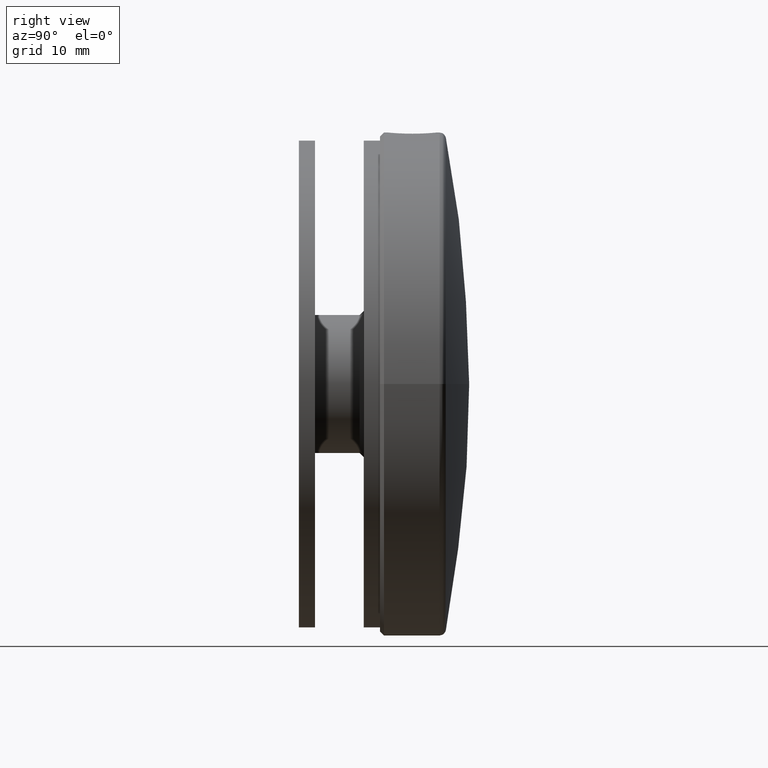
[diagram: clean part render]
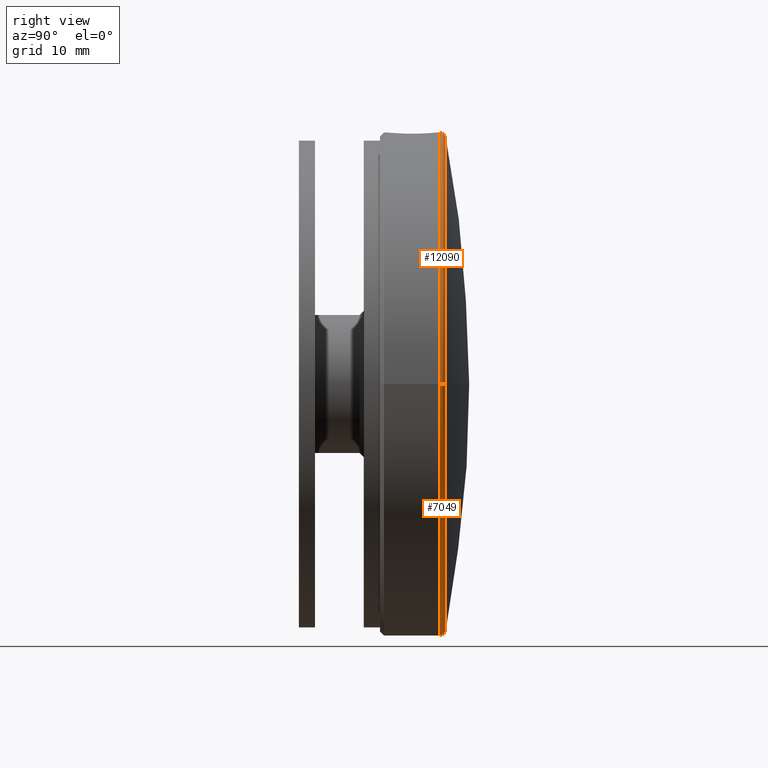
[diagram: same view with one multi-face feature highlighted, each face labeled with its STEP entity id]
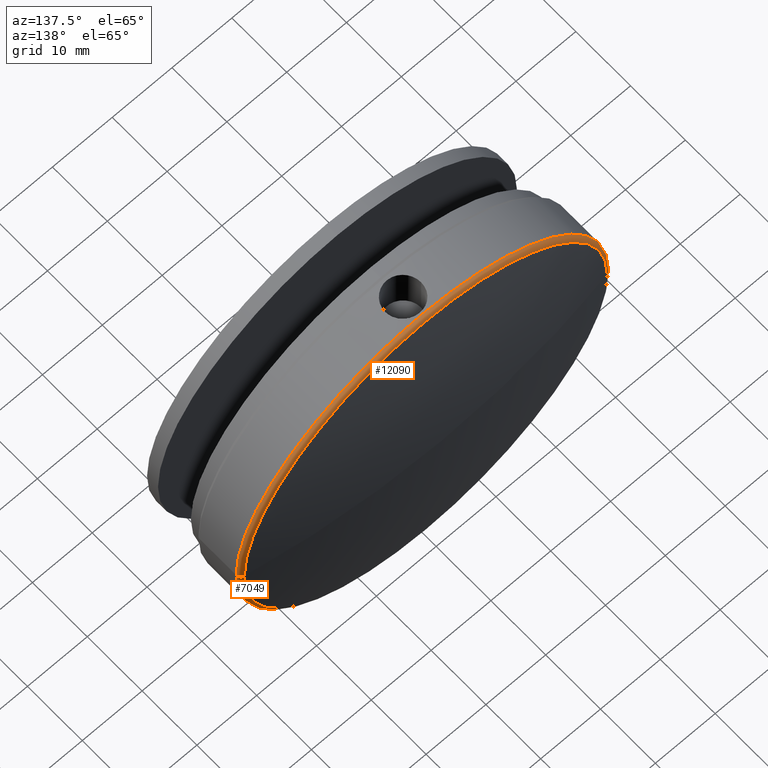
[diagram: same view with one multi-face feature highlighted, each face labeled with its STEP entity id]
A machine part, right view. The highlighted faces form ONE feature: a constant-radius fillet chain: 2 tangent blend faces with common blend radius 0.8 mm. The faces share edges in the B-rep.
A second angle (auxiliary view) of the same feature is appended — it is thin or edge-on in the first view.
Their STEP definitions:
[1] entity #12090 (Torus):
#370 = EDGE_CURVE ( 'NONE', #14091, #10499, #7485, .T. ) ;
#626 = DIRECTION ( 'NONE',  ( 1.000000000000000000, 9.512999706969587101E-16, 0.000000000000000000 ) ) ;
#1082 = ORIENTED_EDGE ( 'NONE', *, *, #370, .T. ) ;
#1765 = AXIS2_PLACEMENT_3D ( 'NONE', #3835, #5037, #12440 ) ;
#3175 = CARTESIAN_POINT ( 'NONE',  ( -30.20000000000000639, 7.339802961777496471, 3.698433333425007470E-15 ) ) ;
#3373 = CARTESIAN_POINT ( 'NONE',  ( 30.99999999999999289, 7.339802961777554202, 0.000000000000000000 ) ) ;
#3835 = CARTESIAN_POINT ( 'NONE',  ( -1.502512562186208390E-13, 8.125579022921936456, 0.000000000000000000 ) ) ;
#4476 = EDGE_CURVE ( 'NONE', #5983, #10499, #9338, .T. ) ;
#5037 = DIRECTION ( 'NONE',  ( -9.462128050782584868E-16, 1.000000000000000000, 0.000000000000000000 ) ) ;
#5108 = EDGE_LOOP ( 'NONE', ( #8063, #1082, #9431, #8438 ) ) ;
#5983 = VERTEX_POINT ( 'NONE', #3373 ) ;
#6591 = CARTESIAN_POINT ( 'NONE',  ( -6.945015549185220484E-15, 7.339802961777524892, 0.000000000000000000 ) ) ;
#6849 = DIRECTION ( 'NONE',  ( 1.224646799147353454E-16, 1.158776483051327982E-31, 1.000000000000000000 ) ) ;
#6854 = CARTESIAN_POINT ( 'NONE',  ( -30.35018648984662804, 8.125579022921908035, 3.716825873831572403E-15 ) ) ;
#7061 = CIRCLE ( 'NONE', #1765, 30.35018648984666711 ) ;
#7185 = CARTESIAN_POINT ( 'NONE',  ( -31.00000000000001066, 7.339802961777495582, 3.796405077356795904E-15 ) ) ;
#7456 = VERTEX_POINT ( 'NONE', #13464 ) ;
#7485 = CIRCLE ( 'NONE', #9816, 0.7999999999999986011 ) ;
#7720 = DIRECTION ( 'NONE',  ( 0.000000000000000000, 0.000000000000000000, -1.000000000000000000 ) ) ;
#8063 = ORIENTED_EDGE ( 'NONE', *, *, #12454, .F. ) ;
#8438 = ORIENTED_EDGE ( 'NONE', *, *, #15050, .F. ) ;
#8527 = AXIS2_PLACEMENT_3D ( 'NONE', #14775, #7720, #13565 ) ;
#9101 = AXIS2_PLACEMENT_3D ( 'NONE', #12881, #12830, #626 ) ;
#9160 = FACE_OUTER_BOUND ( 'NONE', #5108, .T. ) ;
#9338 = CIRCLE ( 'NONE', #9101, 31.00000000000000000 ) ;
#9431 = ORIENTED_EDGE ( 'NONE', *, *, #4476, .F. ) ;
#9542 = TOROIDAL_SURFACE ( 'NONE', #12763, 30.20000000000000284, 0.8000000000000000444 ) ;
#9816 = AXIS2_PLACEMENT_3D ( 'NONE', #3175, #6849, #11598 ) ;
#10499 = VERTEX_POINT ( 'NONE', #7185 ) ;
#11231 = DIRECTION ( 'NONE',  ( 1.000000000000000000, 9.462128050782584868E-16, 0.000000000000000000 ) ) ;
#11598 = DIRECTION ( 'NONE',  ( 1.000000000000000000, 0.000000000000000000, -1.224646799147358384E-16 ) ) ;
#12090 = ADVANCED_FACE ( 'NONE', ( #9160 ), #9542, .T. ) ;
#12440 = DIRECTION ( 'NONE',  ( 1.000000000000000000, 9.716678051211115179E-16, 0.000000000000000000 ) ) ;
#12454 = EDGE_CURVE ( 'NONE', #14091, #7456, #7061, .T. ) ;
#12763 = AXIS2_PLACEMENT_3D ( 'NONE', #6591, #13697, #11231 ) ;
#12830 = DIRECTION ( 'NONE',  ( 9.462128050782584868E-16, -1.000000000000000000, -0.000000000000000000 ) ) ;
#12881 = CARTESIAN_POINT ( 'NONE',  ( -6.945015549185222062E-15, 7.339802961777524892, 0.000000000000000000 ) ) ;
#13464 = CARTESIAN_POINT ( 'NONE',  ( 30.35018648984632961, 8.125579022921963102, 0.000000000000000000 ) ) ;
#13565 = DIRECTION ( 'NONE',  ( -1.000000000000000000, 0.000000000000000000, 0.000000000000000000 ) ) ;
#13697 = DIRECTION ( 'NONE',  ( 9.462128050782584868E-16, -1.000000000000000000, -0.000000000000000000 ) ) ;
#14091 = VERTEX_POINT ( 'NONE', #6854 ) ;
#14197 = CIRCLE ( 'NONE', #8527, 0.7999999999999986011 ) ;
#14775 = CARTESIAN_POINT ( 'NONE',  ( 30.19999999999999574, 7.339802961777553314, 0.000000000000000000 ) ) ;
#15050 = EDGE_CURVE ( 'NONE', #7456, #5983, #14197, .T. ) ;
[2] entity #7049 (Torus):
#238 = TOROIDAL_SURFACE ( 'NONE', #14846, 30.20000000000000284, 0.8000000000000000444 ) ;
#370 = EDGE_CURVE ( 'NONE', #14091, #10499, #7485, .T. ) ;
#1256 = EDGE_LOOP ( 'NONE', ( #11893, #5217, #6215, #2582 ) ) ;
#1681 = EDGE_CURVE ( 'NONE', #10499, #5983, #12205, .T. ) ;
#2582 = ORIENTED_EDGE ( 'NONE', *, *, #1681, .F. ) ;
#3175 = CARTESIAN_POINT ( 'NONE',  ( -30.20000000000000639, 7.339802961777496471, 3.698433333425007470E-15 ) ) ;
#3373 = CARTESIAN_POINT ( 'NONE',  ( 30.99999999999999289, 7.339802961777554202, 0.000000000000000000 ) ) ;
#4216 = CARTESIAN_POINT ( 'NONE',  ( -6.945015549185220484E-15, 7.339802961777524892, 0.000000000000000000 ) ) ;
#5071 = AXIS2_PLACEMENT_3D ( 'NONE', #14251, #8019, #9266 ) ;
#5217 = ORIENTED_EDGE ( 'NONE', *, *, #12959, .F. ) ;
#5983 = VERTEX_POINT ( 'NONE', #3373 ) ;
#6215 = ORIENTED_EDGE ( 'NONE', *, *, #15050, .T. ) ;
#6849 = DIRECTION ( 'NONE',  ( 1.224646799147353454E-16, 1.158776483051327982E-31, 1.000000000000000000 ) ) ;
#6854 = CARTESIAN_POINT ( 'NONE',  ( -30.35018648984662804, 8.125579022921908035, 3.716825873831572403E-15 ) ) ;
#7049 = ADVANCED_FACE ( 'NONE', ( #9096 ), #238, .T. ) ;
#7185 = CARTESIAN_POINT ( 'NONE',  ( -31.00000000000001066, 7.339802961777495582, 3.796405077356795904E-15 ) ) ;
#7456 = VERTEX_POINT ( 'NONE', #13464 ) ;
#7485 = CIRCLE ( 'NONE', #9816, 0.7999999999999986011 ) ;
#7720 = DIRECTION ( 'NONE',  ( 0.000000000000000000, 0.000000000000000000, -1.000000000000000000 ) ) ;
#8019 = DIRECTION ( 'NONE',  ( -9.462128050782584868E-16, 1.000000000000000000, 0.000000000000000000 ) ) ;
#8527 = AXIS2_PLACEMENT_3D ( 'NONE', #14775, #7720, #13565 ) ;
#9096 = FACE_OUTER_BOUND ( 'NONE', #1256, .T. ) ;
#9266 = DIRECTION ( 'NONE',  ( 1.000000000000000000, 9.716678051211115179E-16, 0.000000000000000000 ) ) ;
#9816 = AXIS2_PLACEMENT_3D ( 'NONE', #3175, #6849, #11598 ) ;
#10499 = VERTEX_POINT ( 'NONE', #7185 ) ;
#11004 = DIRECTION ( 'NONE',  ( 9.462128050782584868E-16, -1.000000000000000000, -0.000000000000000000 ) ) ;
#11598 = DIRECTION ( 'NONE',  ( 1.000000000000000000, 0.000000000000000000, -1.224646799147358384E-16 ) ) ;
#11720 = AXIS2_PLACEMENT_3D ( 'NONE', #12322, #11004, #13314 ) ;
#11893 = ORIENTED_EDGE ( 'NONE', *, *, #370, .F. ) ;
#12205 = CIRCLE ( 'NONE', #11720, 31.00000000000000000 ) ;
#12322 = CARTESIAN_POINT ( 'NONE',  ( -6.945015549185222062E-15, 7.339802961777524892, 0.000000000000000000 ) ) ;
#12713 = DIRECTION ( 'NONE',  ( 9.462128050782584868E-16, -1.000000000000000000, -0.000000000000000000 ) ) ;
#12864 = DIRECTION ( 'NONE',  ( 1.000000000000000000, 9.462128050782584868E-16, 0.000000000000000000 ) ) ;
#12959 = EDGE_CURVE ( 'NONE', #7456, #14091, #13836, .T. ) ;
#13314 = DIRECTION ( 'NONE',  ( 1.000000000000000000, 9.512999706969587101E-16, 0.000000000000000000 ) ) ;
#13464 = CARTESIAN_POINT ( 'NONE',  ( 30.35018648984632961, 8.125579022921963102, 0.000000000000000000 ) ) ;
#13565 = DIRECTION ( 'NONE',  ( -1.000000000000000000, 0.000000000000000000, 0.000000000000000000 ) ) ;
#13836 = CIRCLE ( 'NONE', #5071, 30.35018648984666711 ) ;
#14091 = VERTEX_POINT ( 'NONE', #6854 ) ;
#14197 = CIRCLE ( 'NONE', #8527, 0.7999999999999986011 ) ;
#14251 = CARTESIAN_POINT ( 'NONE',  ( -1.502512562186208390E-13, 8.125579022921936456, 0.000000000000000000 ) ) ;
#14775 = CARTESIAN_POINT ( 'NONE',  ( 30.19999999999999574, 7.339802961777553314, 0.000000000000000000 ) ) ;
#14846 = AXIS2_PLACEMENT_3D ( 'NONE', #4216, #12713, #12864 ) ;
#15050 = EDGE_CURVE ( 'NONE', #7456, #5983, #14197, .T. ) ;